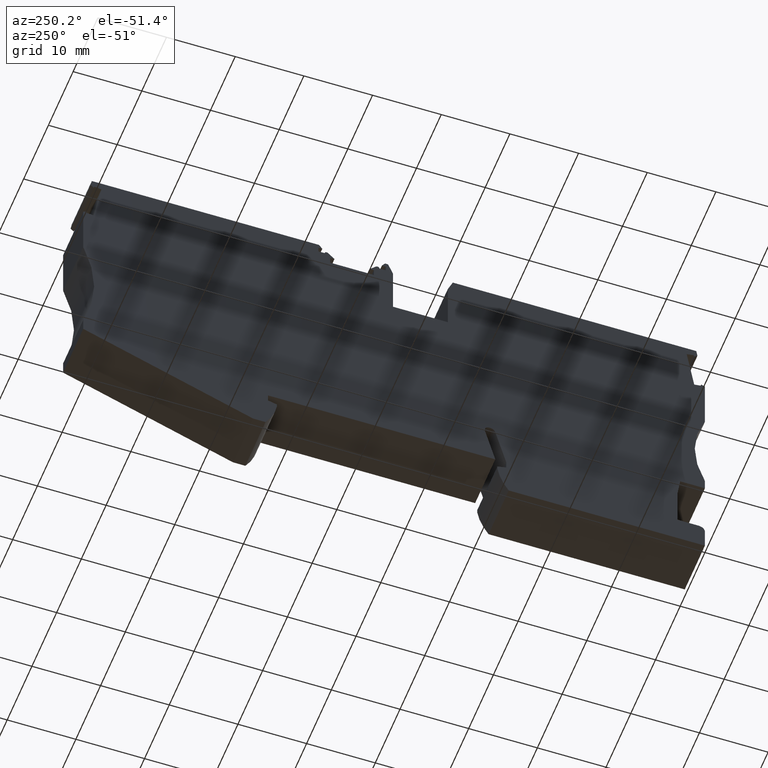
[diagram: clean part render]
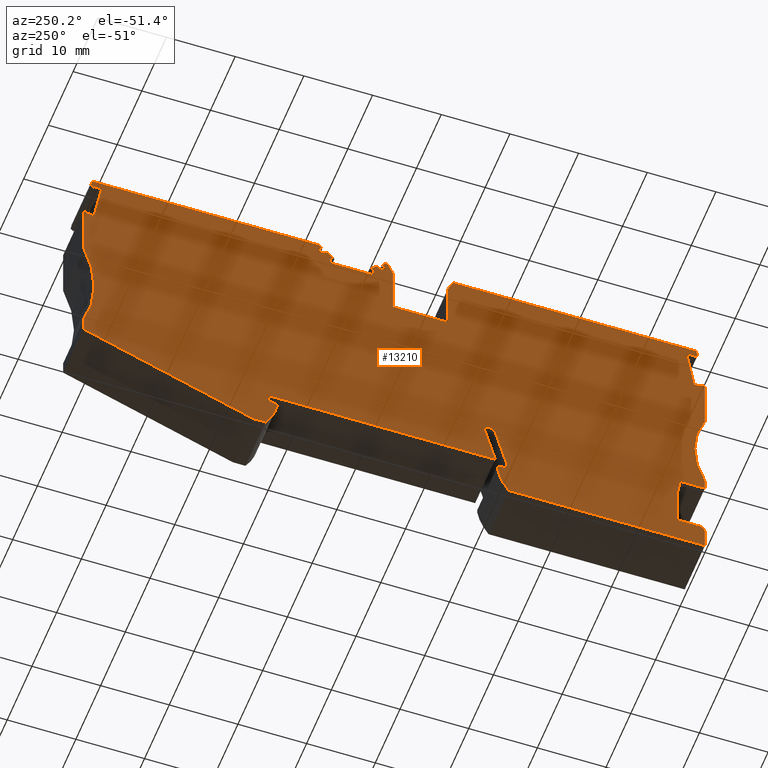
[diagram: same view with one face highlighted and labeled with its STEP entity id]
A machine part, auxiliary view. The second image highlights one B-rep face of the part: STEP entity #13210.
In plain terms, the highlighted planar face has unit normal (-1, -0, -0).
Its self-contained STEP definition (entity closure, byte-faithful):
#7530=CARTESIAN_POINT('',(20.7613397054696,-2.1999999823472,
45.519999999783));
#7540=DIRECTION('',(-2.43228784430126E-12,-1.69295472343328E-13,-1.));
#7550=DIRECTION('',(1.,-2.46282036431295E-10,-2.43228784425956E-12));
#7560=AXIS2_PLACEMENT_3D('',#7530,#7540,#7550);
#7570=PLANE('',#7560);
#7580=CARTESIAN_POINT('',(13.2211920732563,8.47251158120347E-10,
45.519999999801));
#7590=DIRECTION('',(0.573576436447428,0.819152044221504,
-1.53381744563039E-12));
#7600=VECTOR('',#7590,1.);
#7610=LINE('',#7580,#7600);
#7620=CARTESIAN_POINT('',(11.225600590586,-2.84999999668606,
45.5199999998063));
#7630=VERTEX_POINT('',#7620);
#7640=CARTESIAN_POINT('',(11.6807354925659,-2.19999999378753,
45.5199999998051));
#7650=VERTEX_POINT('',#7640);
#7660=EDGE_CURVE('',#7630,#7650,#7610,.T.);
#7670=ORIENTED_EDGE('',*,*,#7660,.T.);
#7680=CARTESIAN_POINT('',(5.95238181344955E-15,-2.84999999536521,
45.5199999998336));
#7690=DIRECTION('',(-1.,1.17664197829548E-10,2.43228784428135E-12));
#7700=VECTOR('',#7690,1.);
#7710=LINE('',#7680,#7700);
#7720=CARTESIAN_POINT('',(11.7821672211825,-2.84999999675155,
45.519999999805));
#7730=VERTEX_POINT('',#7720);
#7740=EDGE_CURVE('',#7730,#7630,#7710,.T.);
#7750=ORIENTED_EDGE('',*,*,#7740,.T.);
#7760=CARTESIAN_POINT('',(11.7821672215336,8.47251158120347E-10,
45.5199999998045));
#7770=DIRECTION('',(1.23190305179045E-10,1.,-1.69295472642952E-13));
#7780=VECTOR('',#7770,1.);
#7790=LINE('',#7760,#7780);
#7800=CARTESIAN_POINT('',(11.7821672210839,-3.64999999684203,
45.5199999998051));
#7810=VERTEX_POINT('',#7800);
#7820=EDGE_CURVE('',#7810,#7730,#7790,.T.);
#7830=ORIENTED_EDGE('',*,*,#7820,.T.);
#7840=CARTESIAN_POINT('',(5.95238181375411E-15,-3.64999999545569,
45.5199999998338));
#7850=DIRECTION('',(1.,-1.17664197829548E-10,-2.43228784428135E-12));
#7860=VECTOR('',#7850,1.);
#7870=LINE('',#7840,#7860);
#7880=CARTESIAN_POINT('',(10.8725835267817,-3.64999999673501,
45.5199999998073));
#7890=VERTEX_POINT('',#7880);
#7900=EDGE_CURVE('',#7890,#7810,#7870,.T.);
#7910=ORIENTED_EDGE('',*,*,#7900,.T.);
#7920=CARTESIAN_POINT('',(10.5725835267817,-3.64999999661326,
45.5199999998081));
#7930=DIRECTION('',(-2.71468618527214E-12,-5.12067753800213E-13,-1.));
#7940=DIRECTION('',(-1.,1.17664197829549E-10,2.71468618521189E-12));
#7950=AXIS2_PLACEMENT_3D('',#7920,#7930,#7940);
#7960=CIRCLE('',#7950,0.299999999999998);
#7970=CARTESIAN_POINT('',(10.36045149245,-3.43786796223298,
45.5199999998085));
#7980=VERTEX_POINT('',#7970);
#7990=EDGE_CURVE('',#7980,#7890,#7960,.T.);
#8000=ORIENTED_EDGE('',*,*,#7990,.T.);
#8010=CARTESIAN_POINT('',(5.95238181766709E-15,-13.7983194522374,
45.5199999998355));
#8020=DIRECTION('',(0.707106781269749,0.707106781103346,
-1.83964009228475E-12));
#8030=VECTOR('',#8020,1.);
#8040=LINE('',#8010,#8030);
#8050=CARTESIAN_POINT('',(9.44831945790569,-4.34999999655522,
45.5199999998109));
#8060=VERTEX_POINT('',#8050);
#8070=EDGE_CURVE('',#8060,#7980,#8040,.T.);
#8080=ORIENTED_EDGE('',*,*,#8070,.T.);
#8090=CARTESIAN_POINT('',(5.95238181403572E-15,-4.34999999544306,
45.5199999998339));
#8100=DIRECTION('',(-1.,1.17709716973558E-10,2.43228784428135E-12));
#8110=VECTOR('',#8100,1.);
#8120=LINE('',#8090,#8110);
#8130=CARTESIAN_POINT('',(10.0571672210147,-4.34999999662689,
45.5199999998094));
#8140=VERTEX_POINT('',#8130);
#8150=EDGE_CURVE('',#8140,#8060,#8120,.T.);
#8160=ORIENTED_EDGE('',*,*,#8150,.T.);
#8170=CARTESIAN_POINT('',(10.0571672215265,8.47251158120347E-10,
45.5199999998087));
#8180=DIRECTION('',(1.17663337406704E-10,1.,-1.69295472629511E-13));
#8190=VECTOR('',#8180,1.);
#8200=LINE('',#8170,#8190);
#8210=CARTESIAN_POINT('',(10.0571672208912,-5.3999999966266,
45.5199999998096));
#8220=VERTEX_POINT('',#8210);
#8230=EDGE_CURVE('',#8220,#8140,#8200,.T.);
#8240=ORIENTED_EDGE('',*,*,#8230,.T.);
#8250=CARTESIAN_POINT('',(5.95238181443153E-15,-5.39999999544265,
45.5199999998341));
#8260=DIRECTION('',(1.,-1.17722068204707E-10,-2.43228784428133E-12));
#8270=VECTOR('',#8260,1.);
#8280=LINE('',#8250,#8270);
#8290=CARTESIAN_POINT('',(3.70716722089105,-5.39999999587907,
45.519999999825));
#8300=VERTEX_POINT('',#8290);
#8310=EDGE_CURVE('',#8300,#8220,#8280,.T.);
#8320=ORIENTED_EDGE('',*,*,#8310,.T.);
#8330=CARTESIAN_POINT('',(3.70716722152644,8.47251158120347E-10,
45.5199999998241));
#8340=DIRECTION('',(-1.17663198628826E-10,-1.,1.6929547262951E-13));
#8350=VECTOR('',#8340,1.);
#8360=LINE('',#8330,#8350);
#8370=CARTESIAN_POINT('',(3.7071672210146,-4.34999999587927,
45.5199999998249));
#8380=VERTEX_POINT('',#8370);
#8390=EDGE_CURVE('',#8380,#8300,#8360,.T.);
#8400=ORIENTED_EDGE('',*,*,#8390,.T.);
#8410=CARTESIAN_POINT('',(5.9523818140355E-15,-4.34999999544302,
45.5199999998339));
#8420=DIRECTION('',(-1.,1.17675744149005E-10,2.43228784428135E-12));
#8430=VECTOR('',#8420,1.);
#8440=LINE('',#8410,#8430);
#8450=CARTESIAN_POINT('',(4.31601498412304,-4.34999999595091,
45.5199999998234));
#8460=VERTEX_POINT('',#8450);
#8470=EDGE_CURVE('',#8460,#8380,#8440,.T.);
#8480=ORIENTED_EDGE('',*,*,#8470,.T.);
#8490=CARTESIAN_POINT('',(-0.0339850116514436,8.47251158120347E-10,
45.5199999998332));
#8500=DIRECTION('',(0.707106781103346,-0.707106781269749,
-1.60019274106922E-12));
#8510=VECTOR('',#8500,1.);
#8520=LINE('',#8490,#8510);
#8530=CARTESIAN_POINT('',(3.40388294979777,-3.43786796141102,
45.5199999998253));
#8540=VERTEX_POINT('',#8530);
#8550=EDGE_CURVE('',#8540,#8460,#8520,.T.);
#8560=ORIENTED_EDGE('',*,*,#8550,.T.);
#8570=CARTESIAN_POINT('',(3.19175091541685,-3.64999999574202,
45.519999999826));
#8580=DIRECTION('',(2.71468618527214E-12,5.12067753800213E-13,1.));
#8590=DIRECTION('',(1.,-1.1766419782955E-10,-2.71468618521189E-12));
#8600=AXIS2_PLACEMENT_3D('',#8570,#8580,#8590);
#8610=CIRCLE('',#8600,0.299999999999998);
#8620=CARTESIAN_POINT('',(2.89175091541685,-3.64999999579316,
45.5199999998267));
#8630=VERTEX_POINT('',#8620);
#8640=EDGE_CURVE('',#8540,#8630,#8610,.T.);
#8650=ORIENTED_EDGE('',*,*,#8640,.F.);
#8660=CARTESIAN_POINT('',(5.95238181376455E-15,-3.64999999545291,
45.5199999998338));
#8670=DIRECTION('',(1.,-1.17664197829549E-10,-2.43228784428135E-12));
#8680=VECTOR('',#8670,1.);
#8690=LINE('',#8660,#8680);
#8700=CARTESIAN_POINT('',(1.98216722167222,-3.64999999568614,
45.5199999998289));
#8710=VERTEX_POINT('',#8700);
#8720=EDGE_CURVE('',#8710,#8630,#8690,.T.);
#8730=ORIENTED_EDGE('',*,*,#8720,.T.);
#8740=CARTESIAN_POINT('',(1.9821672216722,8.47251158120347E-10,
45.5199999998283));
#8750=DIRECTION('',(5.53723733555487E-15,-1.,1.69295472343315E-13));
#8760=VECTOR('',#8750,1.);
#8770=LINE('',#8740,#8760);
#8780=CARTESIAN_POINT('',(1.98216722167221,-2.8499999955983,
45.5199999998288));
#8790=VERTEX_POINT('',#8780);
#8800=EDGE_CURVE('',#8790,#8710,#8770,.T.);
#8810=ORIENTED_EDGE('',*,*,#8800,.T.);
#8820=CARTESIAN_POINT('',(5.95238181346171E-15,-2.84999999536507,
45.5199999998336));
#8830=DIRECTION('',(-1.,1.17664197829549E-10,2.43228784428135E-12));
#8840=VECTOR('',#8830,1.);
#8850=LINE('',#8820,#8840);
#8860=CARTESIAN_POINT('',(2.53873385184577,-2.84999999566379,
45.5199999998275));
#8870=VERTEX_POINT('',#8860);
#8880=EDGE_CURVE('',#8870,#8790,#8850,.T.);
#8890=ORIENTED_EDGE('',*,*,#8880,.T.);
#8900=CARTESIAN_POINT('',(0.543142370890863,8.47251158120347E-10,
45.5199999998318));
#8910=DIRECTION('',(0.573576436254658,-0.819152044356483,
-1.25642822248816E-12));
#8920=VECTOR('',#8910,1.);
#8930=LINE('',#8900,#8920);
#8940=CARTESIAN_POINT('',(2.08359895204606,-2.19999999555328,
45.5199999998285));
#8950=VERTEX_POINT('',#8940);
#8960=EDGE_CURVE('',#8950,#8870,#8930,.T.);
#8970=ORIENTED_EDGE('',*,*,#8960,.T.);
#8980=CARTESIAN_POINT('',(5.95238181318849E-15,-2.19999999529799,
45.5199999998335));
#8990=DIRECTION('',(1.,-1.23190305179045E-10,-2.43228784428042E-12));
#9000=VECTOR('',#8990,1.);
#9010=LINE('',#8980,#9000);
#9020=CARTESIAN_POINT('',(1.65066694252406,-2.19999999550134,
45.5199999998295));
#9030=VERTEX_POINT('',#9020);
#9040=EDGE_CURVE('',#9030,#8950,#9010,.T.);
#9050=ORIENTED_EDGE('',*,*,#9040,.T.);
#9060=CARTESIAN_POINT('',(2.58049010714138,8.47251158120347E-10,
45.5199999998269));
#9070=DIRECTION('',(0.389303997098163,0.921109330016472,
-1.1028713687678E-12));
#9080=VECTOR('',#9070,1.);
#9090=LINE('',#9060,#9080);
#9100=CARTESIAN_POINT('',(0.932167221671736,-3.89999999916026,
45.5199999998315));
#9110=VERTEX_POINT('',#9100);
#9120=EDGE_CURVE('',#9110,#9030,#9090,.T.);
#9130=ORIENTED_EDGE('',*,*,#9120,.T.);
#9140=CARTESIAN_POINT('',(0.932167221671715,8.47251158120347E-10,
45.5199999998309));
#9150=DIRECTION('',(-5.53723733555487E-15,1.,-1.69295472343315E-13));
#9160=VECTOR('',#9150,1.);
#9170=LINE('',#9140,#9160);
#9180=CARTESIAN_POINT('',(0.93216722160525,-11.1999999991543,
45.5199999998328));
#9190=VERTEX_POINT('',#9180);
#9200=EDGE_CURVE('',#9190,#9110,#9170,.T.);
#9210=ORIENTED_EDGE('',*,*,#9200,.T.);
#9220=CARTESIAN_POINT('',(5.95238181666723E-15,-11.1999999991544,
45.5199999998351));
#9230=DIRECTION('',(1.,5.70377079599428E-15,-2.43228784430126E-12));
#9240=VECTOR('',#9230,1.);
#9250=LINE('',#9220,#9240);
#9260=CARTESIAN_POINT('',(-7.06783277832776,-11.1999999991544,
45.5199999998522));
#9270=VERTEX_POINT('',#9260);
#9280=EDGE_CURVE('',#9270,#9190,#9250,.T.);
#9290=ORIENTED_EDGE('',*,*,#9280,.T.);
#9300=CARTESIAN_POINT('',(-7.06783277832776,8.47251158120347E-10,
45.5199999998503));
#9310=DIRECTION('',(2.36912284777785E-25,-1.,1.69295472343328E-13));
#9320=VECTOR('',#9310,1.);
#9330=LINE('',#9300,#9320);
#9340=CARTESIAN_POINT('',(-7.06783277832776,-3.89999999919793,
45.519999999851));
#9350=VERTEX_POINT('',#9340);
#9360=EDGE_CURVE('',#9350,#9270,#9330,.T.);
#9370=ORIENTED_EDGE('',*,*,#9360,.T.);
#9380=CARTESIAN_POINT('',(-8.71615566375359,8.47251158120347E-10,
45.5199999998544));
#9390=DIRECTION('',(0.389303997086194,-0.92110933002153,
-7.90954209971917E-13));
#9400=VECTOR('',#9390,1.);
#9410=LINE('',#9380,#9400);
#9420=CARTESIAN_POINT('',(-7.78633250026155,-2.1999999929186,
45.5199999998525));
#9430=VERTEX_POINT('',#9420);
#9440=EDGE_CURVE('',#9430,#9350,#9410,.T.);
#9450=ORIENTED_EDGE('',*,*,#9440,.T.);
#9460=CARTESIAN_POINT('',(5.95238181319787E-15,-2.19999999291886,
45.5199999998335));
#9470=DIRECTION('',(1.,-3.29181126803158E-14,-2.43228784430125E-12));
#9480=VECTOR('',#9470,1.);
#9490=LINE('',#9460,#9480);
#9500=CARTESIAN_POINT('',(-43.2362293342346,-2.19999999291744,
45.5199999999387));
#9510=VERTEX_POINT('',#9500);
#9520=EDGE_CURVE('',#9510,#9430,#9490,.T.);
#9530=ORIENTED_EDGE('',*,*,#9520,.T.);
#9540=CARTESIAN_POINT('',(-42.8483099782845,8.47251158120347E-10,
45.5199999999374));
#9550=DIRECTION('',(0.173648177670928,0.984807753011503,
-5.89105786835006E-13));
#9560=VECTOR('',#9550,1.);
#9570=LINE('',#9540,#9560);
#9580=CARTESIAN_POINT('',(-43.4047889641199,-3.15594915444489,
45.5199999999393));
#9590=VERTEX_POINT('',#9580);
#9600=EDGE_CURVE('',#9590,#9510,#9570,.T.);
#9610=ORIENTED_EDGE('',*,*,#9600,.T.);
#9620=CARTESIAN_POINT('',(5.95238182760146E-15,-39.5768915657349,
45.5199999998398));
#9630=DIRECTION('',(-0.766044443117507,0.642787609688293,
1.75443728277752E-12));
#9640=VECTOR('',#9630,1.);
#9650=LINE('',#9620,#9640);
#9660=CARTESIAN_POINT('',(-42.9415457758298,-3.54465634288626,
45.5199999999382));
#9670=VERTEX_POINT('',#9660);
#9680=EDGE_CURVE('',#9670,#9590,#9650,.T.);
#9690=ORIENTED_EDGE('',*,*,#9680,.T.);
#9700=CARTESIAN_POINT('',(-42.3165272250792,8.47251158120347E-10,
45.5199999999361));
#9710=DIRECTION('',(-0.1736481776699,-0.984807753011685,
5.89105786832662E-13));
#9720=VECTOR('',#9710,1.);
#9730=LINE('',#9700,#9720);
#9740=CARTESIAN_POINT('',(-42.8942600536541,-3.27648568638849,
45.519999999938));
#9750=VERTEX_POINT('',#9740);
#9760=EDGE_CURVE('',#9750,#9670,#9730,.T.);
#9770=ORIENTED_EDGE('',*,*,#9760,.T.);
#9780=CARTESIAN_POINT('',(5.95238181652527E-15,-10.8399010515282,
45.519999999835));
#9790=DIRECTION('',(-0.984807753011599,0.173648177670386,
2.36595119751025E-12));
#9800=VECTOR('',#9790,1.);
#9810=LINE('',#9780,#9800);
#9820=CARTESIAN_POINT('',(-41.8405157583397,-3.46228923642386,
45.5199999999355));
#9830=VERTEX_POINT('',#9820);
#9840=EDGE_CURVE('',#9830,#9750,#9810,.T.);
#9850=ORIENTED_EDGE('',*,*,#9840,.T.);
#9860=CARTESIAN_POINT('',(-41.2300207507918,8.47251158120347E-10,
45.5199999999334));
#9870=DIRECTION('',(0.17364817766705,0.984807753012187,
-5.89105786826164E-13));
#9880=VECTOR('',#9870,1.);
#9890=LINE('',#9860,#9880);
#9900=CARTESIAN_POINT('',(-42.9388404820839,-9.69119827422634,
45.5199999999392));
#9910=VERTEX_POINT('',#9900);
#9920=EDGE_CURVE('',#9910,#9830,#9890,.T.);
#9930=ORIENTED_EDGE('',*,*,#9920,.T.);
#9940=CARTESIAN_POINT('',(5.95238181900531E-15,-17.2624743717384,
45.5199999998361));
#9950=DIRECTION('',(0.984807753011487,-0.17364817767102,
-2.36595119750999E-12));
#9960=VECTOR('',#9950,1.);
#9970=LINE('',#9940,#9960);
#9980=CARTESIAN_POINT('',(-43.9925847774216,-9.50539472418616,
45.5199999999418));
#9990=VERTEX_POINT('',#9980);
#10000=EDGE_CURVE('',#9990,#9910,#9970,.T.);
#10010=ORIENTED_EDGE('',*,*,#10000,.T.);
#10020=CARTESIAN_POINT('',(-42.3165272250687,8.47251158120347E-10,
45.5199999999361));
#10030=DIRECTION('',(-0.173648177671505,-0.984807753011401,
5.89105786836323E-13));
#10040=VECTOR('',#10030,1.);
#10050=LINE('',#10020,#10040);
#10060=CARTESIAN_POINT('',(-43.9452990552455,-9.23722406768863,
45.5199999999416));
#10070=VERTEX_POINT('',#10060);
#10080=EDGE_CURVE('',#10070,#9990,#10050,.T.);
#10090=ORIENTED_EDGE('',*,*,#10080,.T.);
#10100=CARTESIAN_POINT('',(5.95238180976435E-15,6.75755672408006,
45.519999999832));
#10110=DIRECTION('',(0.939692620787746,0.342020143320621,
-2.34348755845973E-12));
#10120=VECTOR('',#10110,1.);
#10130=LINE('',#10100,#10120);
#10140=CARTESIAN_POINT('',(-44.4928329707016,-9.43651011516254,
45.519999999943));
#10150=VERTEX_POINT('',#10140);
#10160=EDGE_CURVE('',#10150,#10070,#10130,.T.);
#10170=ORIENTED_EDGE('',*,*,#10160,.T.);
#10180=CARTESIAN_POINT('',(-44.4928329706674,8.47251158120347E-10,
45.5199999999414));
#10190=DIRECTION('',(3.62711006382438E-12,1.,-1.6929547235215E-13));
#10200=VECTOR('',#10190,1.);
#10210=LINE('',#10180,#10200);
#10220=CARTESIAN_POINT('',(-44.4928329707298,-17.2000000002658,
45.5199999999382));
#10230=VERTEX_POINT('',#10220);
#10240=EDGE_CURVE('',#10230,#10150,#10210,.T.);
#10250=ORIENTED_EDGE('',*,*,#10240,.T.);
#10260=CARTESIAN_POINT('',(-58.0113388059806,-23.6999999989033,
45.5199999999783));
#10270=DIRECTION('',(2.71468618527214E-12,5.12067753800213E-13,1.));
#10280=DIRECTION('',(1.,8.02136135278716E-14,-2.71468618527219E-12));
#10290=AXIS2_PLACEMENT_3D('',#10260,#10270,#10280);
#10300=CIRCLE('',#10290,15.);
#10310=CARTESIAN_POINT('',(-44.4928327783117,-30.1999995973555,
45.5199999999449));
#10320=VERTEX_POINT('',#10310);
#10330=EDGE_CURVE('',#10320,#10230,#10300,.T.);
#10340=ORIENTED_EDGE('',*,*,#10330,.T.);
#10350=CARTESIAN_POINT('',(-44.4928327783117,8.47251158120347E-10,
45.5199999999414));
#10360=DIRECTION('',(-2.36912284777785E-25,1.,-1.69295472343328E-13));
#10370=VECTOR('',#10360,1.);
#10380=LINE('',#10350,#10370);
#10390=CARTESIAN_POINT('',(-44.4928327783117,-31.7999999989369,
45.5199999999468));
#10400=VERTEX_POINT('',#10390);
#10410=EDGE_CURVE('',#10400,#10320,#10380,.T.);
#10420=ORIENTED_EDGE('',*,*,#10410,.T.);
#10430=CARTESIAN_POINT('',(5.95238182463115E-15,-31.7999999986655,
45.5199999998385));
#10440=DIRECTION('',(-1.,-6.09808037399543E-12,2.43228784430229E-12));
#10450=VECTOR('',#10440,1.);
#10460=LINE('',#10430,#10450);
#10470=CARTESIAN_POINT('',(-40.8928327781243,-31.7999999989149,
45.519999999938));
#10480=VERTEX_POINT('',#10470);
#10490=EDGE_CURVE('',#10480,#10400,#10460,.T.);
#10500=ORIENTED_EDGE('',*,*,#10490,.T.);
#10510=CARTESIAN_POINT('',(-45.3620313218247,8.47251158120347E-10,
45.5199999999435));
#10520=DIRECTION('',(-0.139173100966105,0.990268068740722,
1.70861329866343E-13));
#10530=VECTOR('',#10520,1.);
#10540=LINE('',#10510,#10530);
#10550=CARTESIAN_POINT('',(-40.492832778949,-34.6461478818746,
45.5199999999375));
#10560=VERTEX_POINT('',#10550);
#10570=EDGE_CURVE('',#10560,#10480,#10540,.T.);
#10580=ORIENTED_EDGE('',*,*,#10570,.T.);
#10590=CARTESIAN_POINT('',(-40.4928327824339,8.47251158120347E-10,
45.5199999999316));
#10600=DIRECTION('',(-1.0058655297574E-10,1.,-1.69295472098676E-13));
#10610=VECTOR('',#10600,1.);
#10620=LINE('',#10590,#10610);
#10630=CARTESIAN_POINT('',(-40.4928327783702,-40.3999999984609,
45.5199999999385));
#10640=VERTEX_POINT('',#10630);
#10650=EDGE_CURVE('',#10640,#10560,#10620,.T.);
#10660=ORIENTED_EDGE('',*,*,#10650,.T.);
#10670=CARTESIAN_POINT('',(-44.4928327818804,-40.3999999988617,
45.5199999999482));
#10680=DIRECTION('',(1.,1.00200833741403E-10,-2.43228784431822E-12));
#10690=VECTOR('',#10680,1.);
#10700=LINE('',#10670,#10690);
#10710=CARTESIAN_POINT('',(-43.5928327784548,-40.3999999987757,
45.5199999999457));
#10720=VERTEX_POINT('',#10710);
#10730=EDGE_CURVE('',#10720,#10640,#10700,.T.);
#10740=ORIENTED_EDGE('',*,*,#10730,.T.);
#10750=CARTESIAN_POINT('',(-43.5928327782791,-41.2999999987755,
45.5199999999462));
#10760=DIRECTION('',(2.71468618527214E-12,5.12067753800213E-13,1.));
#10770=DIRECTION('',(-5.5372373364854E-15,1.,-5.12067753800198E-13));
#10780=AXIS2_PLACEMENT_3D('',#10750,#10760,#10770);
#10790=CIRCLE('',#10780,0.89999999999984);
#10800=CARTESIAN_POINT('',(-44.4928327782789,-41.2999999988657,
45.5199999999486));
#10810=VERTEX_POINT('',#10800);
#10820=EDGE_CURVE('',#10720,#10810,#10790,.T.);
#10830=ORIENTED_EDGE('',*,*,#10820,.F.);
#10840=CARTESIAN_POINT('',(-44.4928327824178,8.47251158120347E-10,
45.5199999999414));
#10850=DIRECTION('',(-1.0020083374141E-10,1.,-1.69295472099607E-13));
#10860=VECTOR('',#10850,1.);
#10870=LINE('',#10840,#10860);
#10880=CARTESIAN_POINT('',(-44.4928327779689,-44.4000000040688,
45.5199999999489));
#10890=VERTEX_POINT('',#10880);
#10900=EDGE_CURVE('',#10890,#10810,#10870,.T.);
#10910=ORIENTED_EDGE('',*,*,#10900,.T.);
#10920=CARTESIAN_POINT('',(5.95238182948773E-15,-44.4000000040671,
45.5199999998407));
#10930=DIRECTION('',(-1.,-3.82333054097167E-14,2.43228784430126E-12));
#10940=VECTOR('',#10930,1.);
#10950=LINE('',#10920,#10940);
#10960=CARTESIAN_POINT('',(-15.9267764349614,-44.4000000040677,
45.5199999998791));
#10970=VERTEX_POINT('',#10960);
#10980=EDGE_CURVE('',#10970,#10890,#10950,.T.);
#10990=ORIENTED_EDGE('',*,*,#10980,.T.);
#11000=CARTESIAN_POINT('',(-23.6618054577045,-38.8846282108607,
45.5199999998973));
#11010=DIRECTION('',(2.71468618527214E-12,5.12067753800213E-13,1.));
#11020=DIRECTION('',(1.,-2.22641791002337E-25,-2.71468618527214E-12));
#11030=AXIS2_PLACEMENT_3D('',#11000,#11010,#11020);
#11040=CIRCLE('',#11030,9.499999999999);
#11050=CARTESIAN_POINT('',(-14.2678327783286,-40.299999999162,
45.5199999998747));
#11060=VERTEX_POINT('',#11050);
#11070=EDGE_CURVE('',#10970,#11060,#11040,.T.);
#11080=ORIENTED_EDGE('',*,*,#11070,.F.);
#11090=CARTESIAN_POINT('',(-14.2678327783286,8.47251158120347E-10,
45.5199999998679));
#11100=DIRECTION('',(2.36912284777785E-25,-1.,1.69295472343328E-13));
#11110=VECTOR('',#11100,1.);
#11120=LINE('',#11090,#11110);
#11130=CARTESIAN_POINT('',(-14.2678327783286,-39.8483339493186,
45.5199999998746));
#11140=VERTEX_POINT('',#11130);
#11150=EDGE_CURVE('',#11140,#11060,#11120,.T.);
#11160=ORIENTED_EDGE('',*,*,#11150,.T.);
#11170=CARTESIAN_POINT('',(5.95238182920213E-15,-43.6713882200157,
45.5199999998406));
#11180=DIRECTION('',(0.96592582628904,-0.258819045102626,
-2.30555519451259E-12));
#11190=VECTOR('',#11180,1.);
#11200=LINE('',#11170,#11190);
#11210=CARTESIAN_POINT('',(-15.5678327783279,-39.4999999991582,
45.5199999998777));
#11220=VERTEX_POINT('',#11210);
#11230=EDGE_CURVE('',#11220,#11140,#11200,.T.);
#11240=ORIENTED_EDGE('',*,*,#11230,.T.);
#11250=CARTESIAN_POINT('',(-15.5678327783279,8.47251158120347E-10,
45.519999999871));
#11260=DIRECTION('',(2.36912284777785E-25,-1.,1.69295472343328E-13));
#11270=VECTOR('',#11260,1.);
#11280=LINE('',#11250,#11270);
#11290=CARTESIAN_POINT('',(-15.5678327783279,-38.3999999991423,
45.5199999998775));
#11300=VERTEX_POINT('',#11290);
#11310=EDGE_CURVE('',#11300,#11220,#11280,.T.);
#11320=ORIENTED_EDGE('',*,*,#11310,.T.);
#11330=CARTESIAN_POINT('',(-5.27858378894796,8.47251158120347E-10,
45.519999999846));
#11340=DIRECTION('',(-0.258819045103168,-0.965925826288895,
7.93056194412848E-13));
#11350=VECTOR('',#11340,1.);
#11360=LINE('',#11330,#11350);
#11370=CARTESIAN_POINT('',(-13.9582471789304,-32.3929447630758,
45.5199999998727));
#11380=VERTEX_POINT('',#11370);
#11390=EDGE_CURVE('',#11380,#11300,#11360,.T.);
#11400=ORIENTED_EDGE('',*,*,#11390,.T.);
#11410=CARTESIAN_POINT('',(-13.1855065178993,-32.5999999991583,
45.5199999998707));
#11420=DIRECTION('',(2.71468618527214E-12,5.12067753800213E-13,1.));
#11430=DIRECTION('',(1.,-2.22641791002337E-25,-2.71468618527214E-12));
#11440=AXIS2_PLACEMENT_3D('',#11410,#11420,#11430);
#11450=CIRCLE('',#11440,0.799999999999994);
#11460=CARTESIAN_POINT('',(-12.9558416625141,-31.8336749674643,
45.5199999998697));
#11470=VERTEX_POINT('',#11460);
#11480=EDGE_CURVE('',#11470,#11380,#11450,.T.);
#11490=ORIENTED_EDGE('',*,*,#11480,.T.);
#11500=CARTESIAN_POINT('',(-13.1156930297953,-32.5151788488755,
45.5199999998706));
#11510=DIRECTION('',(2.71468618527214E-12,5.12067753800213E-13,1.));
#11520=DIRECTION('',(1.,-2.22641791002337E-25,-2.71468618527214E-12));
#11530=AXIS2_PLACEMENT_3D('',#11500,#11510,#11520);
#11540=CIRCLE('',#11530,0.700000000000186);
#11550=CARTESIAN_POINT('',(-12.4395449513933,-32.6963521804493,
45.5199999998688));
#11560=VERTEX_POINT('',#11550);
#11570=EDGE_CURVE('',#11560,#11470,#11540,.T.);
#11580=ORIENTED_EDGE('',*,*,#11570,.T.);
#11590=CARTESIAN_POINT('',(-3.67858378895173,8.47251158120347E-10,
45.5199999998421));
#11600=DIRECTION('',(0.258819045102995,0.965925826288941,
-7.93083949988067E-13));
#11610=VECTOR('',#11600,1.);
#11620=LINE('',#11590,#11610);
#11630=CARTESIAN_POINT('',(-13.9678327783285,-38.3999999991583,
45.5199999998736));
#11640=VERTEX_POINT('',#11630);
#11650=EDGE_CURVE('',#11640,#11560,#11620,.T.);
#11660=ORIENTED_EDGE('',*,*,#11650,.T.);
#11670=CARTESIAN_POINT('',(5.95238182717381E-15,-38.3999999991583,
45.5199999998397));
#11680=DIRECTION('',(-1.,-1.44620292032358E-25,2.43228784430126E-12));
#11690=VECTOR('',#11680,1.);
#11700=LINE('',#11670,#11690);
#11710=CARTESIAN_POINT('',(19.132167221672,-38.3999999991583,
45.5199999997931));
#11720=VERTEX_POINT('',#11710);
#11730=EDGE_CURVE('',#11720,#11640,#11700,.T.);
#11740=ORIENTED_EDGE('',*,*,#11730,.T.);
#11750=CARTESIAN_POINT('',(19.132167221672,8.47251158120347E-10,
45.5199999997866));
#11760=DIRECTION('',(-2.36912284777785E-25,1.,-1.69295472343328E-13));
#11770=VECTOR('',#11760,1.);
#11780=LINE('',#11750,#11770);
#11790=CARTESIAN_POINT('',(19.132167221672,-39.4999999991582,
45.5199999997933));
#11800=VERTEX_POINT('',#11790);
#11810=EDGE_CURVE('',#11800,#11720,#11780,.T.);
#11820=ORIENTED_EDGE('',*,*,#11810,.T.);
#11830=CARTESIAN_POINT('',(5.95238182956558E-15,-44.6264487556611,
45.5199999998407));
#11840=DIRECTION('',(0.965925826289086,0.258819045102457,
-2.39320730230689E-12));
#11850=VECTOR('',#11840,1.);
#11860=LINE('',#11830,#11850);
#11870=CARTESIAN_POINT('',(17.8321672216718,-39.8483339493186,
45.5199999997965));
#11880=VERTEX_POINT('',#11870);
#11890=EDGE_CURVE('',#11880,#11800,#11860,.T.);
#11900=ORIENTED_EDGE('',*,*,#11890,.T.);
#11910=CARTESIAN_POINT('',(17.8321672216993,8.47251158120347E-10,
45.5199999997898));
#11920=DIRECTION('',(6.90225654409223E-13,1.,-1.69295472345007E-13));
#11930=VECTOR('',#11920,1.);
#11940=LINE('',#11910,#11930);
#11950=CARTESIAN_POINT('',(17.8321672216715,-40.2999999991591,
45.5199999997997));
#11960=VERTEX_POINT('',#11950);
#11970=EDGE_CURVE('',#11960,#11880,#11940,.T.);
#11980=ORIENTED_EDGE('',*,*,#11970,.T.);
#11990=CARTESIAN_POINT('',(27.2261399010479,-38.8846282108607,
45.5199999997735));
#12000=DIRECTION('',(-2.71468618527214E-12,-5.12067753800213E-13,-1.));
#12010=DIRECTION('',(-1.,2.22641791002337E-25,2.71468618527214E-12));
#12020=AXIS2_PLACEMENT_3D('',#11990,#12000,#12010);
#12030=CIRCLE('',#12020,9.499999999999);
#12040=CARTESIAN_POINT('',(19.4911108750768,-44.3999999995405,
45.5199999997973));
#12050=VERTEX_POINT('',#12040);
#12060=EDGE_CURVE('',#12050,#11960,#12030,.T.);
#12070=ORIENTED_EDGE('',*,*,#12060,.T.);
#12080=CARTESIAN_POINT('',(5.95238182949126E-15,-44.4000000055196,
45.5199999998407));
#12090=DIRECTION('',(-1.,-3.06759382291651E-10,2.43228784435317E-12));
#12100=VECTOR('',#12090,1.);
#12110=LINE('',#12080,#12100);
#12120=CARTESIAN_POINT('',(21.2919951507269,-44.3999999989881,
45.5199999997889));
#12130=VERTEX_POINT('',#12120);
#12140=EDGE_CURVE('',#12130,#12050,#12110,.T.);
#12150=ORIENTED_EDGE('',*,*,#12140,.T.);
#12160=CARTESIAN_POINT('',(5.95238183252105E-15,-52.3177442610099,
45.519999999842));
#12170=DIRECTION('',(-0.937291736634536,-0.348545836923376,
2.33876320057636E-12));
#12180=VECTOR('',#12170,1.);
#12190=LINE('',#12160,#12180);
#12200=CARTESIAN_POINT('',(46.0321672309119,-35.1999999922893,
45.5199999997272));
#12210=VERTEX_POINT('',#12200);
#12220=EDGE_CURVE('',#12210,#12130,#12190,.T.);
#12230=ORIENTED_EDGE('',*,*,#12220,.T.);
#12240=CARTESIAN_POINT('',(46.0321672303722,8.47251158120347E-10,
45.5199999997212));
#12250=DIRECTION('',(1.53350855587777E-11,-1.,1.69295472306029E-13));
#12260=VECTOR('',#12250,1.);
#12270=LINE('',#12240,#12260);
#12280=CARTESIAN_POINT('',(46.0321672308813,-33.1999999996263,
45.519999999735));
#12290=VERTEX_POINT('',#12280);
#12300=EDGE_CURVE('',#12290,#12210,#12270,.T.);
#12310=ORIENTED_EDGE('',*,*,#12300,.T.);
#12320=CARTESIAN_POINT('',(65.4486550695242,-25.1999999988869,
45.5199999996782));
#12330=DIRECTION('',(2.71468618527214E-12,5.12067753800213E-13,1.));
#12340=DIRECTION('',(-5.5372373364854E-15,1.,-5.12067753800198E-13));
#12350=AXIS2_PLACEMENT_3D('',#12320,#12330,#12340);
#12360=CIRCLE('',#12350,21.);
#12370=CARTESIAN_POINT('',(46.0321672306396,-17.199999998734,
45.5199999997268));
#12380=VERTEX_POINT('',#12370);
#12390=EDGE_CURVE('',#12380,#12290,#12360,.T.);
#12400=ORIENTED_EDGE('',*,*,#12390,.T.);
#12410=CARTESIAN_POINT('',(46.0321672305772,8.47251158120347E-10,
45.5199999997212));
#12420=DIRECTION('',(3.62711006380825E-12,-1.,1.69295472334506E-13));
#12430=VECTOR('',#12420,1.);
#12440=LINE('',#12410,#12430);
#12450=CARTESIAN_POINT('',(46.0321672306114,-9.43651011533109,
45.5199999997228));
#12460=VERTEX_POINT('',#12450);
#12470=EDGE_CURVE('',#12460,#12380,#12440,.T.);
#12480=ORIENTED_EDGE('',*,*,#12470,.T.);
#12490=CARTESIAN_POINT('',(5.95238180953387E-15,7.31782857509552,
45.5199999998319));
#12500=DIRECTION('',(0.939692620787746,-0.342020143320621,
-2.22766354141565E-12));
#12510=VECTOR('',#12500,1.);
#12520=LINE('',#12490,#12510);
#12530=CARTESIAN_POINT('',(45.484633315155,-9.23722406785705,
45.5199999997241));
#12540=VERTEX_POINT('',#12530);
#12550=EDGE_CURVE('',#12540,#12460,#12520,.T.);
#12560=ORIENTED_EDGE('',*,*,#12550,.T.);
#12570=CARTESIAN_POINT('',(43.8558614849485,8.47251158120347E-10,
45.5199999997265));
#12580=DIRECTION('',(-0.173648177671505,0.984807753011401,
2.5562254581437E-13));
#12590=VECTOR('',#12580,1.);
#12600=LINE('',#12570,#12590);
#12610=CARTESIAN_POINT('',(45.5319190373311,-9.50539472435474,
45.519999999724));
#12620=VERTEX_POINT('',#12610);
#12630=EDGE_CURVE('',#12620,#12540,#12600,.T.);
#12640=ORIENTED_EDGE('',*,*,#12630,.T.);
#12650=CARTESIAN_POINT('',(5.95238181909592E-15,-17.5339005342645,
45.5199999998361));
#12660=DIRECTION('',(0.984807753011487,0.17364817767102,
-2.42473750666393E-12));
#12670=VECTOR('',#12660,1.);
#12680=LINE('',#12650,#12670);
#12690=CARTESIAN_POINT('',(44.4781747419936,-9.69119827439487,
45.5199999997266));
#12700=VERTEX_POINT('',#12690);
#12710=EDGE_CURVE('',#12700,#12620,#12680,.T.);
#12720=ORIENTED_EDGE('',*,*,#12710,.T.);
#12730=CARTESIAN_POINT('',(42.7693550106719,8.47251158120347E-10,
45.5199999997291));
#12740=DIRECTION('',(0.17364817766705,-0.984807753012187,
-2.55622545804211E-13));
#12750=VECTOR('',#12740,1.);
#12760=LINE('',#12730,#12750);
#12770=CARTESIAN_POINT('',(43.3798500182495,-3.46228923659243,
45.5199999997282));
#12780=VERTEX_POINT('',#12770);
#12790=EDGE_CURVE('',#12780,#12700,#12760,.T.);
#12800=ORIENTED_EDGE('',*,*,#12790,.T.);
#12810=CARTESIAN_POINT('',(5.95238181663623E-15,-11.1113272140533,
45.519999999835));
#12820=DIRECTION('',(-0.984807753011599,-0.173648177670386,
2.42475138445199E-12));
#12830=VECTOR('',#12820,1.);
#12840=LINE('',#12810,#12830);
#12850=CARTESIAN_POINT('',(44.433594313564,-3.27648568655705,
45.5199999997256));
#12860=VERTEX_POINT('',#12850);
#12870=EDGE_CURVE('',#12860,#12780,#12840,.T.);
#12880=ORIENTED_EDGE('',*,*,#12870,.T.);
#12890=CARTESIAN_POINT('',(43.8558614849593,8.47251158120347E-10,
45.5199999997265));
#12900=DIRECTION('',(-0.1736481776699,0.984807753011685,
2.55622545810709E-13));
#12910=VECTOR('',#12900,1.);
#12920=LINE('',#12890,#12910);
#12930=CARTESIAN_POINT('',(44.4808800357396,-3.54465634305478,
45.5199999997256));
#12940=VERTEX_POINT('',#12930);
#12950=EDGE_CURVE('',#12940,#12860,#12920,.T.);
#12960=ORIENTED_EDGE('',*,*,#12950,.T.);
#12970=CARTESIAN_POINT('',(5.95238182811362E-15,-40.8685463756583,
45.5199999998401));
#12980=DIRECTION('',(-0.766044443117507,-0.642787609688293,
1.9720965067554E-12));
#12990=VECTOR('',#12980,1.);
#13000=LINE('',#12970,#12990);
#13010=CARTESIAN_POINT('',(44.9441232240297,-3.15594915461344,
45.5199999997244));
#13020=VERTEX_POINT('',#13010);
#13030=EDGE_CURVE('',#13020,#12940,#13000,.T.);
#13040=ORIENTED_EDGE('',*,*,#13030,.T.);
#13050=CARTESIAN_POINT('',(44.3876442381646,8.47251158120347E-10,
45.5199999997252));
#13060=DIRECTION('',(0.173648177670928,-0.984807753011503,
-2.55636423600861E-13));
#13070=VECTOR('',#13060,1.);
#13080=LINE('',#13050,#13070);
#13090=CARTESIAN_POINT('',(44.775563593348,-2.19999998562953,
45.5199999997246));
#13100=VERTEX_POINT('',#13090);
#13110=EDGE_CURVE('',#13100,#13020,#13080,.T.);
#13120=ORIENTED_EDGE('',*,*,#13110,.T.);
#13130=CARTESIAN_POINT('',(5.95238181319652E-15,-2.19999999666725,
45.5199999998335));
#13140=DIRECTION('',(1.,2.46512088519778E-10,-2.43228784434298E-12));
#13150=VECTOR('',#13140,1.);
#13160=LINE('',#13130,#13150);
#13170=EDGE_CURVE('',#7650,#13100,#13160,.T.);
#13180=ORIENTED_EDGE('',*,*,#13170,.T.);
#13190=EDGE_LOOP('',(#13180,#13120,#13040,#12960,#12880,#12800,#12720,
#12640,#12560,#12480,#12400,#12310,#12230,#12150,#12070,#11980,#11900,
#11820,#11740,#11660,#11580,#11490,#11400,#11320,#11240,#11160,#11080,
#10990,#10910,#10830,#10740,#10660,#10580,#10500,#10420,#10340,#10250,
#10170,#10090,#10010,#9930,#9850,#9770,#9690,#9610,#9530,#9450,#9370,
#9290,#9210,#9130,#9050,#8970,#8890,#8810,#8730,#8650,#8560,#8480,#8400,
#8320,#8240,#8160,#8080,#8000,#7910,#7830,#7750,#7670));
#13200=FACE_OUTER_BOUND('',#13190,.T.);
#13210=ADVANCED_FACE('',(#13200),#7570,.T.);